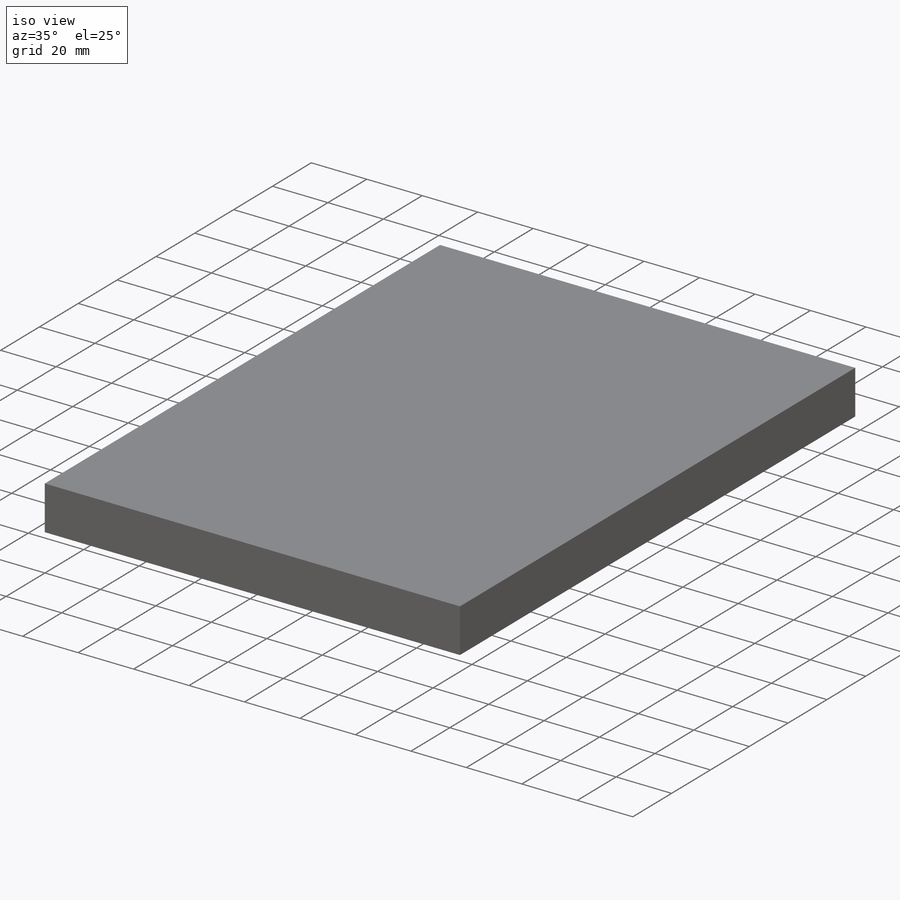
[diagram: iso view]
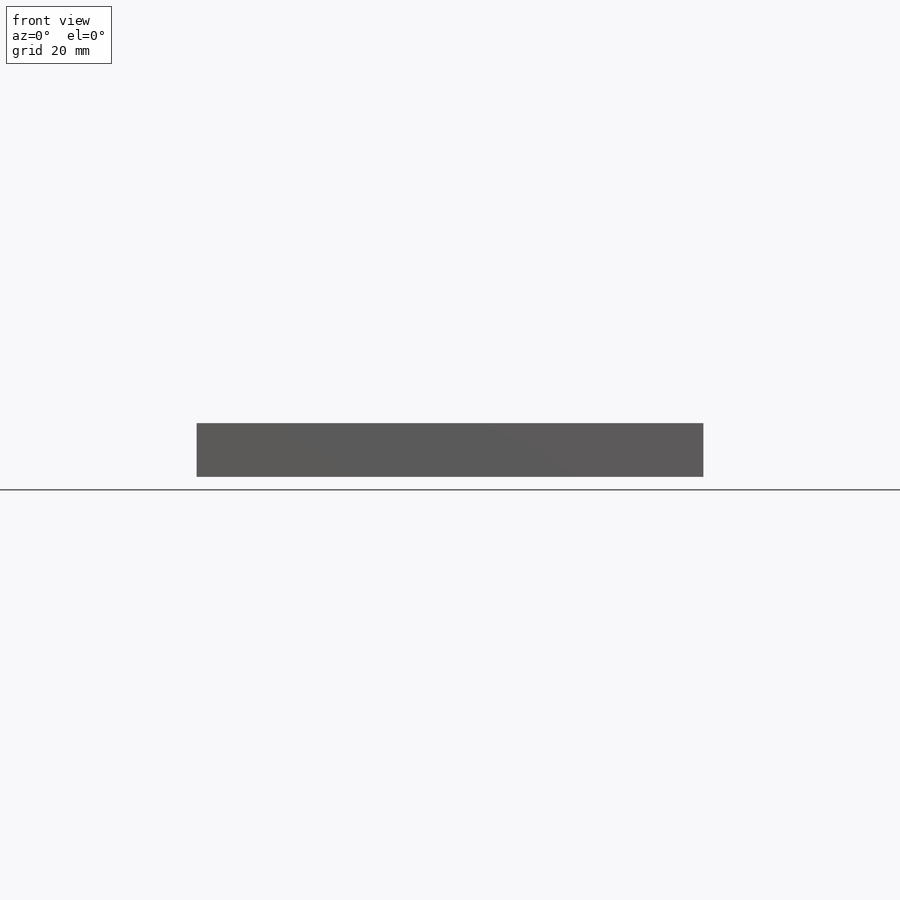
[diagram: front view]
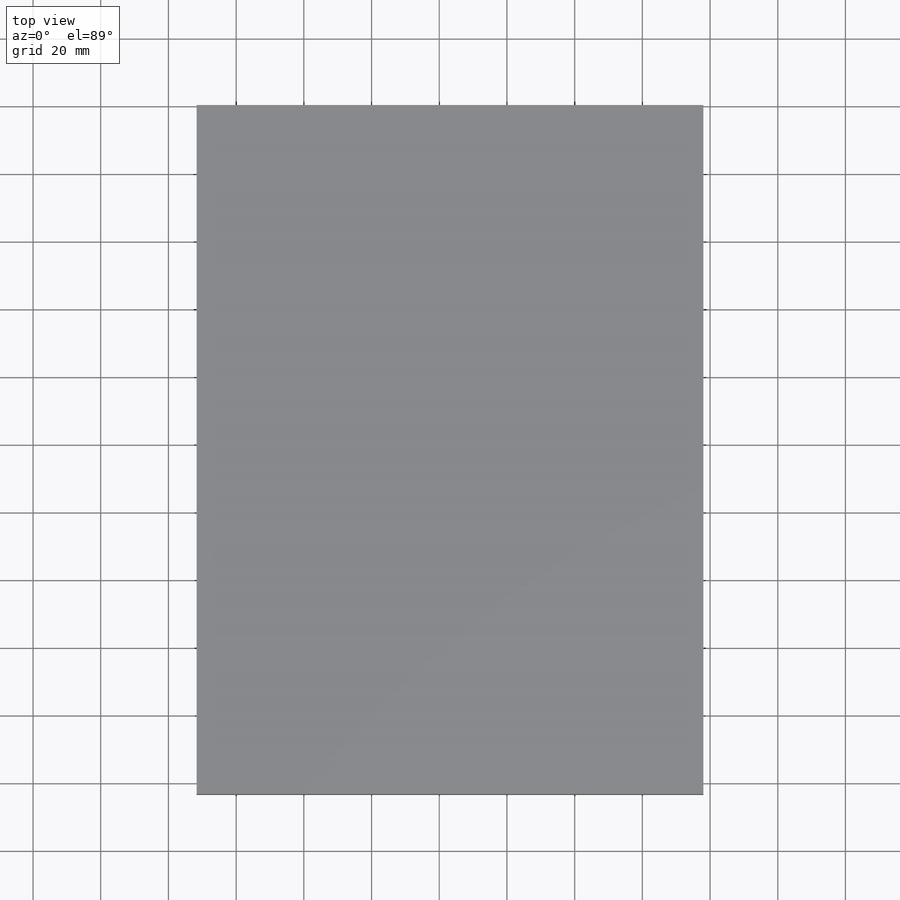
[diagram: top view]
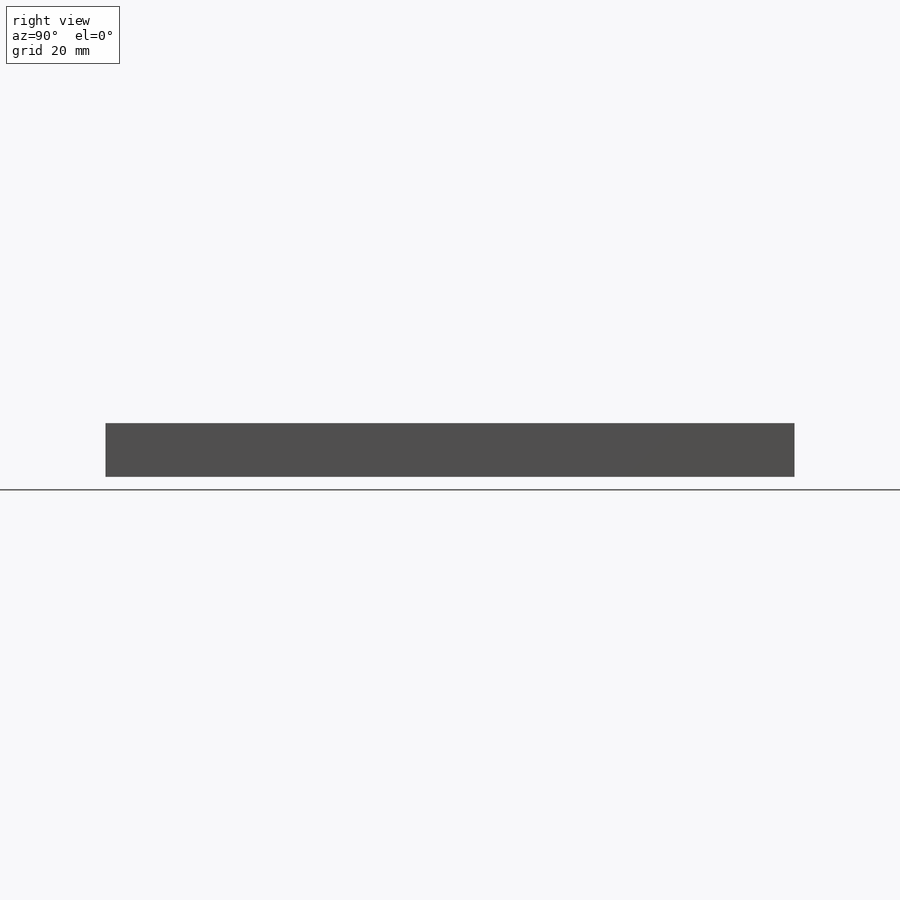
[diagram: right view]
SOLIDWORKS PART (.sldprt)
format: sldprt  version: not decoded by parser v0  size: 3,633,664 bytes
history: native  units: mm
features: sketch x3, extrude x3, boolean_combine x3, material x1, plane x1, chamfer x1 + 3 further entries (+28 scaffold rows collapsed; 9 parser-record rows omitted)
feature tree (52):
  scaffold x28  (default folders/planes/origin — collapsed)
  material  "Material <not specified>"
  "makerbot_silicone_body_molds_01"
  parser-record x9  (decoder bookkeeping rows leaked as tree rows — omitted from the tree; the rows remain in map.json)
  sketch  "Sketch1"  dims[D1=3.175mm D2=3.175mm D3=3.175mm D4=3.175mm]
  extrude  "Boss-Extrude1"  Depth=3.175mm
  boolean_combine  "Combine1"
  "makerbot_silicone_body_molds_011"
  sketch  "Sketch2"  dims[D1=3.175mm D2=3.175mm D3=3.175mm D4=3.175mm]
  extrude  "Boss-Extrude2"  Depth=3.175mm
  boolean_combine  "Combine2"
  "makerbot_silicone_body_molds_012"
  sketch  "Sketch3"  dims[D1=3.175mm D2=3.175mm D3=3.175mm D4=3.175mm]
  extrude  "Boss-Extrude3"  Depth=3.175mm
  boolean_combine  "Combine3"
  plane  "Plane1"  Offset=12.7mm
  chamfer  "Chamfer1"  Distance=6.35mm Angle=45deg
decode coverage: 7 of 10 modeling features carry decoded parameters; 3 rows unclassified (native names shown)
note: suppression state not decoded; provenance and decode notes live in map.json
